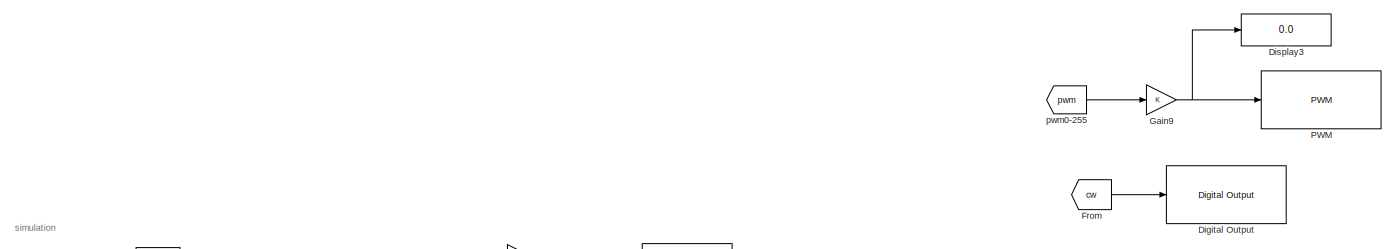
[diagram: root canvas - part 1/3, full width, top band]
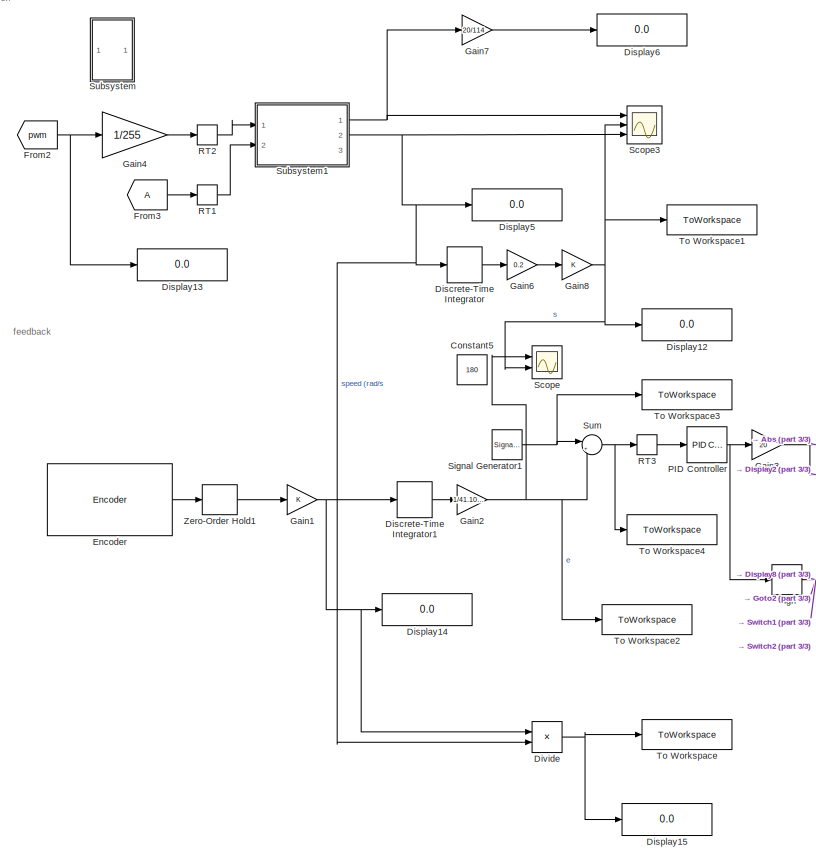
[diagram: root canvas - part 2/3, left side, full height]
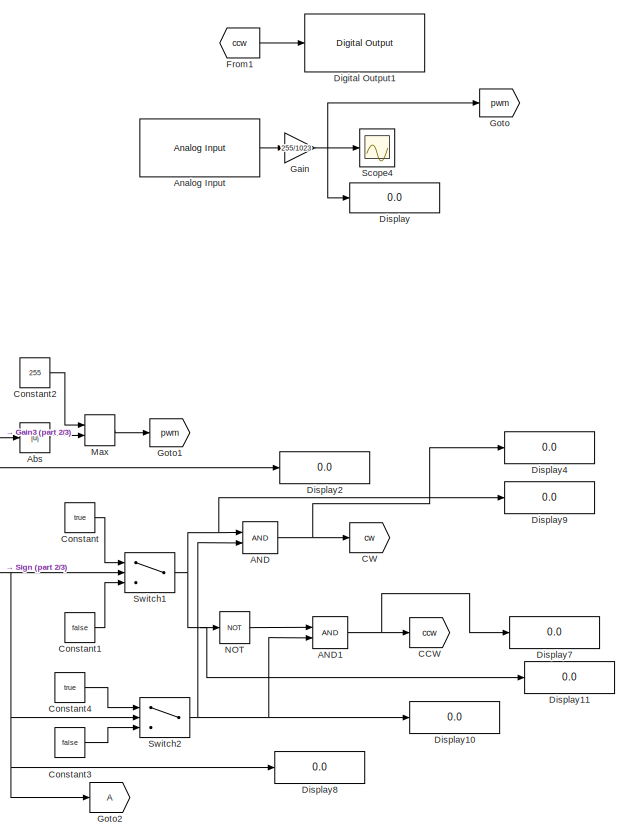
[diagram: root canvas - part 3/3, right side, full height]
MODEL slx_a287ce2c1caa
KIND model
CONFIG AbsTol = auto
CONFIG EnableMultiTasking = on
CONFIG FixedStep = .005
CONFIG InitFcn = pos = 0;\nvel = 0;
CONFIG MaxStep = auto
CONFIG MinStep = auto
CONFIG RelTol = 1e-3
CONFIG SampleTimeConstraint = Unconstrained
CONFIG SolverName = FixedStepAuto
CONFIG StartTime = 0.0
CONFIG StopTime = inf
WORKSPACE source: external: MATLAB File  (data not in archive)
BLOCK [Logic] AND
  AllPortsSameDT = off
  IconShape = distinctive
  OutDataTypeStr = boolean
  Ports = [2, 1]
BLOCK [Logic] AND1
  AllPortsSameDT = off
  IconShape = distinctive
  OutDataTypeStr = boolean
  Ports = [2, 1]
BLOCK [Abs] Abs
  SaturateOnIntegerOverflow = off
BLOCK [Reference] Analog Input  REF=arduinolib/Analog Input
  Ports = [0, 1]
  SourceBlock = arduinolib/Analog Input
  SourceProductBaseCode = ARDUINO
  SourceType = Arduino Analog Input
BLOCK [Goto] CCW
  GotoTag = ccw
BLOCK [Goto] CW
  GotoTag = cw
BLOCK [Constant] Constant
  Value = true
BLOCK [Constant] Constant1
  Value = false
BLOCK [Constant] Constant2
  Value = 255
BLOCK [Constant] Constant3
  Value = false
BLOCK [Constant] Constant4
  Value = true
BLOCK [Constant] Constant5
  Value = 180
BLOCK [Reference] Digital Output  REF=arduinolib/Digital Output
  Ports = [1]
  SourceBlock = arduinolib/Digital Output
  SourceProductBaseCode = ARDUINO
  SourceType = Arduino Digital Output
BLOCK [Reference] Digital Output1  REF=arduinolib/Digital Output
  Ports = [1]
  SourceBlock = arduinolib/Digital Output
  SourceProductBaseCode = ARDUINO
  SourceType = Arduino Digital Output
BLOCK [DiscreteIntegrator] Discrete-Time Integrator
  ICPrevOutput = DiscIntNeverNeededParam
  ICPrevScaledInput = DiscIntNeverNeededParam
  InitialConditionSetting = Auto
  Ports = [1, 1]
  SampleTime = -1
BLOCK [DiscreteIntegrator] Discrete-Time Integrator1
  ICPrevOutput = DiscIntNeverNeededParam
  ICPrevScaledInput = DiscIntNeverNeededParam
  InitialConditionSetting = Auto
  Ports = [1, 1]
  SampleTime = -1
BLOCK [Display] Display
  Decimation = 1
  Ports = [1]
BLOCK [Display] Display10
  Decimation = 1
  Ports = [1]
BLOCK [Display] Display11
  Decimation = 1
  Ports = [1]
BLOCK [Display] Display12
  Decimation = 1
  Ports = [1]
BLOCK [Display] Display13
  Decimation = 1
  Ports = [1]
BLOCK [Display] Display14
  Decimation = 1
  Ports = [1]
BLOCK [Display] Display15
  Decimation = 1
  Ports = [1]
BLOCK [Display] Display2
  Decimation = 1
  Ports = [1]
BLOCK [Display] Display3
  Decimation = 1
  Ports = [1]
BLOCK [Display] Display4
  Decimation = 1
  Ports = [1]
BLOCK [Display] Display5
  Decimation = 1
  Ports = [1]
BLOCK [Display] Display6
  Decimation = 1
  Ports = [1]
BLOCK [Display] Display7
  Decimation = 1
  Ports = [1]
BLOCK [Display] Display8
  Decimation = 1
  Ports = [1]
BLOCK [Display] Display9
  Decimation = 1
  Ports = [1]
BLOCK [Product] Divide
  Inputs = */
  Ports = [2, 1]
BLOCK [Reference] Encoder  REF=arduinosensorlib/Encoder
  Ports = [0, 1]
  SourceBlock = arduinosensorlib/Encoder
  SourceProductBaseCode = ARDUINO
  SourceType = Arduino Rotary Encoder
BLOCK [From] From
  GotoTag = cw
BLOCK [From] From1
  GotoTag = ccw
BLOCK [From] From2
  GotoTag = pwm
BLOCK [From] From3
BLOCK [Gain] Gain
  Gain = 255/1023
  OutDataTypeStr = uint8
  RndMeth = Nearest
BLOCK [Gain] Gain1
  OutDataTypeStr = int32
BLOCK [Gain] Gain2
  Gain = 1/41.1039/2.7
BLOCK [Gain] Gain3
  Gain = 20
BLOCK [Gain] Gain4
  Gain = 1/255
  OutDataTypeStr = double
BLOCK [Gain] Gain6
  Gain = 0.2
BLOCK [Gain] Gain7
  Gain = 20/114
BLOCK [Gain] Gain8
BLOCK [Gain] Gain9
  OutDataTypeStr = uint8
  RndMeth = Nearest
BLOCK [Goto] Goto
  Commented = on
  GotoTag = pwm
BLOCK [Goto] Goto1
  GotoTag = pwm
BLOCK [Goto] Goto2
BLOCK [MinMax] Max
  Inputs = 2
  Ports = [2, 1]
BLOCK [Logic] NOT
  AllPortsSameDT = off
  IconShape = distinctive
  Operator = NOT
  OutDataTypeStr = boolean
  Ports = [1, 1]
BLOCK [Reference] PID Controller  REF=slpidlib/PID Controller
  Ports = [1, 1]
  SourceBlock = slpidlib/PID Controller
  SourceProductBaseCode = SL
  SourceType = PID 1dof
BLOCK [Reference] PWM  REF=arduinolib/PWM
  Ports = [1]
  SourceBlock = arduinolib/PWM
  SourceProductBaseCode = ARDUINO
  SourceType = Arduino PWM
BLOCK [RateTransition] RT1
  OutPortSampleTime = Ts
BLOCK [RateTransition] RT2
  OutPortSampleTime = 5e-3
BLOCK [RateTransition] RT3
  OutPortSampleTime = Ts
BLOCK [Scope] Scope
  Floating = off
  NumInputPorts = 2
  Ports = [2]
  ScopeSpecificationString = Simulink.scopes.TimeScopeBlockCfg('CurrentConfiguration', extmgr.ConfigurationSet(extmgr.Configuration('Core','General UI',true),extmgr.Configuration('Core','Source UI',true),extmgr.Configuration('Sources','WiredSimulink',true,'DataLoggingVariableName','ScopeData1'),extmgr.Configuration('Visuals','Time Domain',true,'SerializedDisplays',{struct('MinYLimReal','-6.85347','MaxYLimReal','4.85965','YLab...<+1465ch>
BLOCK [Scope] Scope3
  Floating = off
  NumInputPorts = 3
  Ports = [3]
  ScopeSpecificationString = Simulink.scopes.TimeScopeBlockCfg('CurrentConfiguration', extmgr.ConfigurationSet(extmgr.Configuration('Core','General UI',true),extmgr.Configuration('Core','Source UI',true),extmgr.Configuration('Sources','WiredSimulink',true,'DataLoggingVariableName','ScopeData2'),extmgr.Configuration('Visuals','Time Domain',true,'SerializedDisplays',{struct('MinYLimReal','-18.44941','MaxYLimReal','-11.40812','Y...<+1818ch>
BLOCK [Scope] Scope4
  Floating = off
  NumInputPorts = 1
  Ports = [1]
  ScopeSpecificationString = Simulink.scopes.TimeScopeBlockCfg('CurrentConfiguration', extmgr.ConfigurationSet(extmgr.Configuration('Core','General UI',true),extmgr.Configuration('Core','Source UI',true),extmgr.Configuration('Sources','WiredSimulink',true,'DataLoggingVariableName','ScopeData1'),extmgr.Configuration('Visuals','Time Domain',true,'SerializedDisplays',{struct('MinYLimReal','41.25','MaxYLimReal','278.75','YLabelRe...<+1422ch>
BLOCK [Signum] Sign
BLOCK [SignalGenerator] Signal Generator1
  Amplitude = pi/2
  Frequency = .1
  Ports = [0, 1]
  WaveForm = square
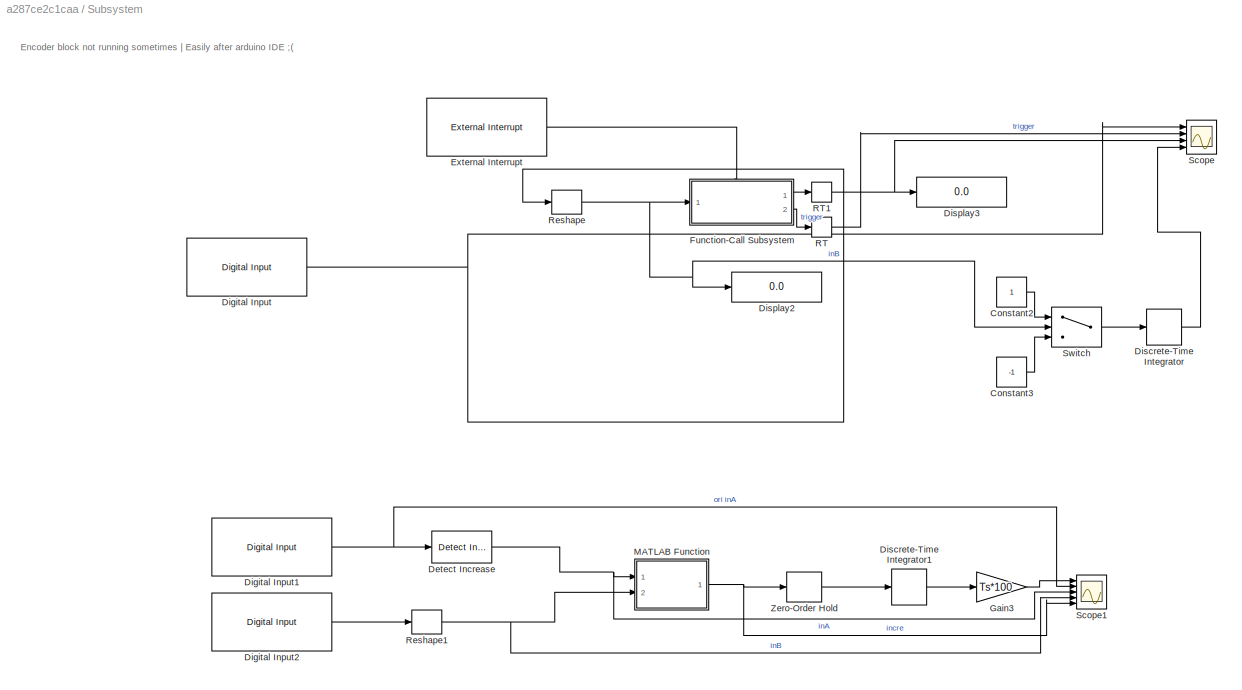
BLOCK [SubSystem] Subsystem
  Ports = []
  RequestExecContextInheritance = off
BLOCK [Constant] Subsystem/Constant2
  Commented = on
BLOCK [Constant] Subsystem/Constant3
  Commented = on
  Value = -1
BLOCK [Reference] Subsystem/Detect Increase  REF=simulink/Logic and Bit
Operations/Detect
Increase
  Commented = on
  Ports = [1, 1]
  SourceBlock = simulink/Logic and Bit\nOperations/Detect\nIncrease
  SourceProductBaseCode = SL
  SourceType = Detect Increase
BLOCK [Reference] Subsystem/Digital Input  REF=arduinolib/Digital Input
  Commented = on
  Ports = [0, 1]
  SourceBlock = arduinolib/Digital Input
  SourceProductBaseCode = ARDUINO
  SourceType = Arduino Digital Input
BLOCK [Reference] Subsystem/Digital Input1  REF=arduinolib/Digital Input
  Commented = on
  Ports = [0, 1]
  SourceBlock = arduinolib/Digital Input
  SourceProductBaseCode = ARDUINO
  SourceType = Arduino Digital Input
BLOCK [Reference] Subsystem/Digital Input2  REF=arduinolib/Digital Input
  Commented = on
  Ports = [0, 1]
  SourceBlock = arduinolib/Digital Input
  SourceProductBaseCode = ARDUINO
  SourceType = Arduino Digital Input
BLOCK [DiscreteIntegrator] Subsystem/Discrete-Time Integrator
  Commented = on
  ICPrevOutput = DiscIntNeverNeededParam
  ICPrevScaledInput = DiscIntNeverNeededParam
  InitialConditionSetting = Auto
  Ports = [1, 1]
  SampleTime = Ts
  gainval = 100
BLOCK [DiscreteIntegrator] Subsystem/Discrete-Time Integrator1
  Commented = on
  ICPrevOutput = DiscIntNeverNeededParam
  ICPrevScaledInput = DiscIntNeverNeededParam
  InitialConditionSetting = Auto
  Ports = [1, 1]
  SampleTime = -1
BLOCK [Display] Subsystem/Display2
  Commented = on
  Decimation = 1
  Ports = [1]
BLOCK [Display] Subsystem/Display3
  Commented = on
  Decimation = 1
  Ports = [1]
BLOCK [Reference] Subsystem/External Interrupt  REF=arduinolib/External Interrupt
  Commented = on
  Ports = [0, 1]
  SourceBlock = arduinolib/External Interrupt
  SourceProductBaseCode = ARDUINO
  SourceType = Arduino Interrupt Block
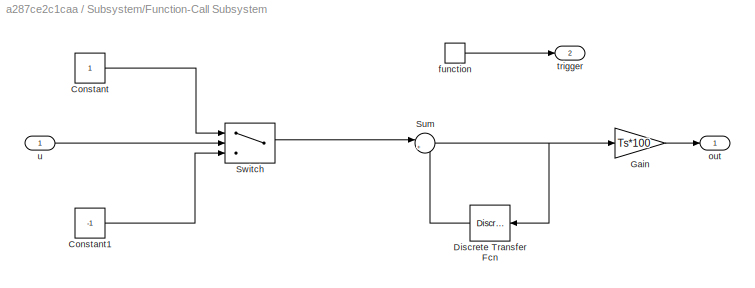
BLOCK [SubSystem] Subsystem/Function-Call Subsystem
  Commented = on
  InitFcn = pos = 0;\nvel = 0;
  Ports = [1, 2, 0, 1]
  RequestExecContextInheritance = off
  TreatAsAtomicUnit = on
BLOCK [Constant] Subsystem/Function-Call Subsystem/Constant
BLOCK [Constant] Subsystem/Function-Call Subsystem/Constant1
  Value = -1
BLOCK [DiscreteTransferFcn] Subsystem/Function-Call Subsystem/Discrete Transfer Fcn
  Denominator = [1 0]
  InputPortMap = u0
  NameLocation = top
  Ports = [1, 1]
BLOCK [Gain] Subsystem/Function-Call Subsystem/Gain
  Gain = Ts*100
BLOCK [Sum] Subsystem/Function-Call Subsystem/Sum
  Inputs = |++
  Ports = [2, 1]
BLOCK [Switch] Subsystem/Function-Call Subsystem/Switch
  Criteria = u2 > Threshold
  InputSameDT = off
  SaturateOnIntegerOverflow = off
BLOCK [TriggerPort] Subsystem/Function-Call Subsystem/function
  Ports = [0, 1]
  ShowOutputPort = on
  StatesWhenEnabling = held
  TriggerType = function-call
  VariantControl = (inherit)
BLOCK [Outport] Subsystem/Function-Call Subsystem/out
BLOCK [Outport] Subsystem/Function-Call Subsystem/trigger
  Port = 2
BLOCK [Inport] Subsystem/Function-Call Subsystem/u
BLOCK [Gain] Subsystem/Gain3
  Commented = on
  Gain = Ts*100
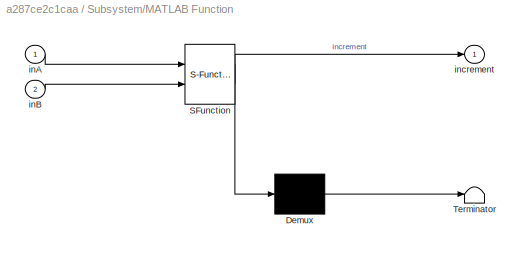
BLOCK [SubSystem] Subsystem/MATLAB Function
  Commented = on
  ErrorFcn = Stateflow.Translate.translate
  PermitHierarchicalResolution = ExplicitOnly
  Ports = [2, 1]
  RequestExecContextInheritance = off
  SFBlockType = MATLAB Function
  TreatAsAtomicUnit = on
BLOCK [Demux] Subsystem/MATLAB Function/ Demux 
  Outputs = 1
  Ports = [1, 1]
BLOCK [S-Function] Subsystem/MATLAB Function/ SFunction 
  EnableBusSupport = on
  FunctionName = sf_sfun
  PortCounts = [2 2]
  Ports = [2, 2]
  SFcnIsStateOwnerBlock = off
  SFunctionDeploymentMode = off
  Tag = Stateflow S-Function 2
BLOCK [Terminator] Subsystem/MATLAB Function/ Terminator 
BLOCK [Inport] Subsystem/MATLAB Function/inA
BLOCK [Inport] Subsystem/MATLAB Function/inB
  Port = 2
BLOCK [Outport] Subsystem/MATLAB Function/increment
BLOCK [RateTransition] Subsystem/RT
  Commented = on
  Deterministic = off
BLOCK [RateTransition] Subsystem/RT1
  Commented = on
  Deterministic = off
BLOCK [Reshape] Subsystem/Reshape
  Commented = on
  Ports = [1, 1]
BLOCK [Reshape] Subsystem/Reshape1
  Commented = on
  Ports = [1, 1]
BLOCK [Scope] Subsystem/Scope
  Commented = on
  Floating = off
  NumInputPorts = 4
  Ports = [4]
  ScopeSpecificationString = Simulink.scopes.TimeScopeBlockCfg('CurrentConfiguration', extmgr.ConfigurationSet(extmgr.Configuration('Core','General UI',true),extmgr.Configuration('Core','Source UI',true),extmgr.Configuration('Sources','WiredSimulink',true,'DataLoggingVariableName','ScopeData1'),extmgr.Configuration('Visuals','Time Domain',true,'SerializedDisplays',{struct('MinYLimReal','-4.76878','MaxYLimReal','6.49732','YLab...<+1578ch>
BLOCK [Scope] Subsystem/Scope1
  Commented = on
  Floating = off
  NumInputPorts = 5
  Ports = [5]
  ScopeSpecificationString = Simulink.scopes.TimeScopeBlockCfg('CurrentConfiguration', extmgr.ConfigurationSet(extmgr.Configuration('Core','General UI',true),extmgr.Configuration('Core','Source UI',true),extmgr.Configuration('Sources','WiredSimulink',true,'DataLoggingVariableName','ScopeData1'),extmgr.Configuration('Visuals','Time Domain',true,'SerializedDisplays',{struct('MinYLimReal','-1.29375','MaxYLimReal','1.64375','YLab...<+1608ch>
BLOCK [Switch] Subsystem/Switch
  Commented = on
  Criteria = u2 > Threshold
  InputSameDT = off
  SaturateOnIntegerOverflow = off
BLOCK [ZeroOrderHold] Subsystem/Zero-Order Hold
  Commented = on
  SampleTime = -1
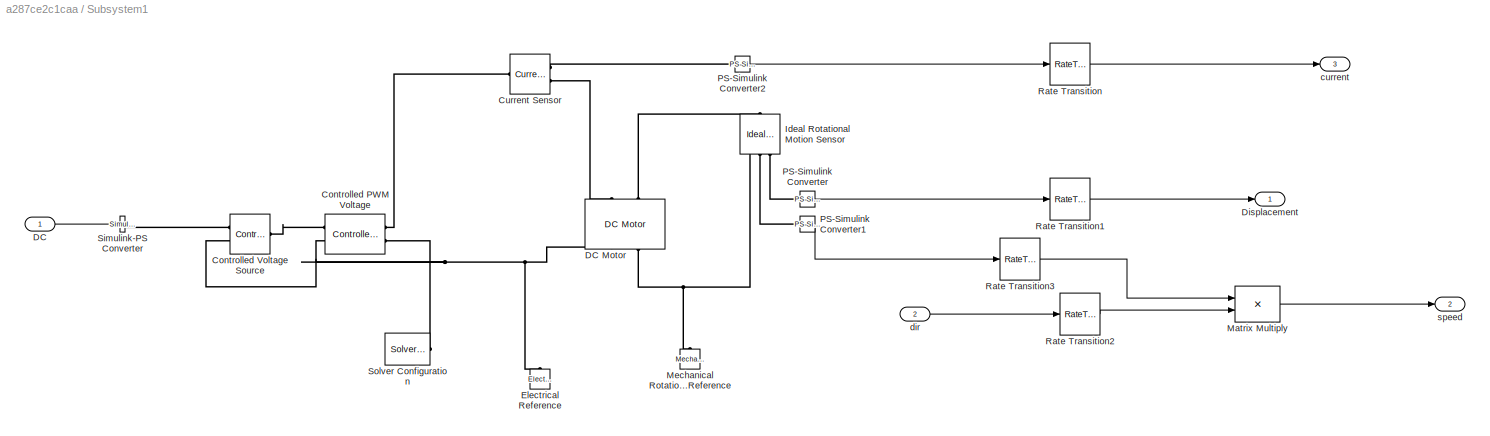
BLOCK [SubSystem] Subsystem1
  Ports = [2, 3]
  RequestExecContextInheritance = off
BLOCK [Reference] Subsystem1/Controlled PWM Voltage  REF=ee_lib/Integrated Circuits/Controlled PWM
Voltage
  Ports = [0, 0, 0, 0, 0, 2, 2]
  SourceBlock = ee_lib/Integrated Circuits/Controlled PWM\nVoltage
  SourceProductBaseCode = PS
  SourceType = Controlled PWM\nVoltage
BLOCK [Reference] Subsystem1/Controlled Voltage Source  REF=fl_lib/Electrical/Electrical Sources/Controlled Voltage
Source
  Ports = [0, 0, 0, 0, 0, 1, 2]
  SourceBlock = fl_lib/Electrical/Electrical Sources/Controlled Voltage\nSource
  SourceProductBaseCode = SS
  SourceType = Controlled Voltage\nSource
BLOCK [Reference] Subsystem1/Current Sensor  REF=fl_lib/Electrical/Electrical Sensors/Current Sensor
  Ports = [0, 0, 0, 0, 0, 1, 2]
  SourceBlock = fl_lib/Electrical/Electrical Sensors/Current Sensor
  SourceProductBaseCode = SS
  SourceType = Current Sensor
BLOCK [Inport] Subsystem1/DC
BLOCK [Reference] Subsystem1/DC Motor  REF=ee_lib/Electromechanical/Brushed Motors/DC Motor
  NameLocation = right
  Ports = [0, 0, 0, 0, 0, 2, 2]
  SourceBlock = ee_lib/Electromechanical/Brushed Motors/DC Motor
  SourceProductBaseCode = PS
  SourceType = DC Motor
BLOCK [Outport] Subsystem1/Displacement
  NameLocation = top
BLOCK [Reference] Subsystem1/Electrical Reference  REF=fl_lib/Electrical/Electrical Elements/Electrical Reference
  NameLocation = right
  Ports = [0, 0, 0, 0, 0, 1]
  SourceBlock = fl_lib/Electrical/Electrical Elements/Electrical Reference
  SourceProductBaseCode = SS
  SourceType = Electrical Reference
BLOCK [Reference] Subsystem1/Ideal Rotational Motion Sensor  REF=fl_lib/Mechanical/Mechanical Sensors/Ideal Rotational
Motion Sensor
  NameLocation = left
  Ports = [0, 0, 0, 0, 0, 1, 3]
  SourceBlock = fl_lib/Mechanical/Mechanical Sensors/Ideal Rotational\nMotion Sensor
  SourceProductBaseCode = SS
  SourceType = Ideal Rotational\nMotion Sensor
BLOCK [Product] Subsystem1/Matrix Multiply
  Multiplication = Matrix(*)
  Ports = [2, 1]
BLOCK [Reference] Subsystem1/Mechanical Rotational Reference  REF=fl_lib/Mechanical/Rotational Elements/Mechanical
Rotational Reference
  NameLocation = right
  Ports = [0, 0, 0, 0, 0, 1]
  SourceBlock = fl_lib/Mechanical/Rotational Elements/Mechanical\nRotational Reference
  SourceProductBaseCode = SS
  SourceType = Mechanical\nRotational Reference
BLOCK [Reference] Subsystem1/PS-Simulink Converter  REF=nesl_utility/PS-Simulink
Converter
  Ports = [0, 1, 0, 0, 0, 1]
  SourceBlock = nesl_utility/PS-Simulink\nConverter
  SourceProductBaseCode = PW,SS
  SourceType = PS-Simulink\nConverter
BLOCK [Reference] Subsystem1/PS-Simulink Converter1  REF=nesl_utility/PS-Simulink
Converter
  Ports = [0, 1, 0, 0, 0, 1]
  SourceBlock = nesl_utility/PS-Simulink\nConverter
  SourceProductBaseCode = PW,SS
  SourceType = PS-Simulink\nConverter
BLOCK [Reference] Subsystem1/PS-Simulink Converter2  REF=nesl_utility/PS-Simulink
Converter
  Ports = [0, 1, 0, 0, 0, 1]
  SourceBlock = nesl_utility/PS-Simulink\nConverter
  SourceProductBaseCode = PW,SS
  SourceType = PS-Simulink\nConverter
BLOCK [RateTransition] Subsystem1/Rate Transition
  OutPortSampleTime = Ts
BLOCK [RateTransition] Subsystem1/Rate Transition1
  OutPortSampleTime = Ts
BLOCK [RateTransition] Subsystem1/Rate Transition2
  OutPortSampleTime = Ts
BLOCK [RateTransition] Subsystem1/Rate Transition3
  OutPortSampleTime = Ts
BLOCK [Reference] Subsystem1/Simulink-PS Converter  REF=nesl_utility/Simulink-PS
Converter
  Ports = [1, 0, 0, 0, 0, 0, 1]
  SourceBlock = nesl_utility/Simulink-PS\nConverter
  SourceProductBaseCode = PW,SS
  SourceType = Simulink-PS\nConverter
BLOCK [Reference] Subsystem1/Solver Configuration  REF=nesl_utility/Solver
Configuration
  Ports = [0, 0, 0, 0, 0, 0, 1]
  SourceBlock = nesl_utility/Solver\nConfiguration
  SourceProductBaseCode = PW,SS
  SourceType = Solver\nConfiguration
BLOCK [Outport] Subsystem1/current
  Port = 3
BLOCK [Inport] Subsystem1/dir
  Port = 2
BLOCK [Outport] Subsystem1/speed
  Port = 2
BLOCK [Sum] Sum
  Inputs = |+-
  Ports = [2, 1]
BLOCK [Switch] Switch1
  Criteria = u2 > Threshold
  InputSameDT = off
  SaturateOnIntegerOverflow = off
BLOCK [Switch] Switch2
  Criteria = u2 ~= 0
  InputSameDT = off
  SaturateOnIntegerOverflow = off
BLOCK [ToWorkspace] To Workspace
  FixptAsFi = on
  MaxDataPoints = inf
  Ports = [1]
  SampleTime = -1
  SaveFormat = Timeseries
  VariableName = timeVar
BLOCK [ToWorkspace] To Workspace1
  FixptAsFi = on
  MaxDataPoints = inf
  Ports = [1]
  SampleTime = -1
  SaveFormat = Timeseries
  VariableName = sOut
BLOCK [ToWorkspace] To Workspace2
  FixptAsFi = on
  MaxDataPoints = inf
  Ports = [1]
  SampleTime = -1
  SaveFormat = Timeseries
  VariableName = eOut
BLOCK [ToWorkspace] To Workspace3
  FixptAsFi = on
  MaxDataPoints = inf
  Ports = [1]
  SampleTime = Ts
  SaveFormat = Timeseries
  VariableName = dOut
BLOCK [ToWorkspace] To Workspace4
  FixptAsFi = on
  MaxDataPoints = inf
  Ports = [1]
  SampleTime = Ts
  SaveFormat = Timeseries
  VariableName = error
BLOCK [ZeroOrderHold] Zero-Order Hold1
  NameLocation = top
  SampleTime = Ts
BLOCK [From] pwm0-255
  GotoTag = pwm
ANNOTATION (root): feedback
ANNOTATION (root): simulation
ANNOTATION Subsystem: Encoder block not running sometimes | Easily after arduino IDE ;(
NET AND1:1 -> CCW:1, Display7:1
NET AND:1 -> CW:1, Display4:1
LINE Abs:1 -> Max:2
LINE Analog Input:1 -> Gain:1
LINE Constant1:1 -> Switch1:3
LINE Constant2:1 -> Max:1
LINE Constant3:1 -> Switch2:3
LINE Constant4:1 -> Switch2:1
LINE Constant:1 -> Switch1:1
LINE Discrete-Time Integrator1:1 -> Gain2:1
LINE Discrete-Time Integrator:1 -> Gain6:1
NET Divide:1 -> Display15:1, To Workspace:1
LINE Encoder:1 -> Zero-Order Hold1:1
LINE From1:1 -> Digital Output1:1
NET From2:1 -> Display13:1, Gain4:1
LINE From3:1 -> RT1:1
LINE From:1 -> Digital Output:1
NET Gain1:1 -> Discrete-Time Integrator1:1, Display14:1, Divide:1
NET Gain2:1 -> Scope:1, Sum:2, To Workspace2:1
NET Gain3:1 -> Abs:1, Display2:1
LINE Gain4:1 -> RT2:1
LINE Gain6:1 -> Gain8:1
LINE Gain7:1 -> Display6:1
NET Gain8:1 -> Display12:1, Scope3:2, Scope:2, To Workspace1:1
NET Gain9:1 -> Display3:1, PWM:1
NET Gain:1 -> Display:1, Goto:1, Scope4:1
LINE Max:1 -> Goto1:1
LINE NOT:1 -> AND1:1
NET PID Controller:1 -> Gain3:1, Sign:1
LINE RT1:1 -> Subsystem1:2
LINE RT2:1 -> Subsystem1:1
LINE RT3:1 -> PID Controller:1
NET Sign:1 -> Display8:1, Goto2:1, Switch1:2, Switch2:2
NET Signal Generator1:1 -> Sum:1, To Workspace3:1
LINE Subsystem/Constant2:1 -> Subsystem/Switch:1
LINE Subsystem/Constant3:1 -> Subsystem/Switch:3
NET Subsystem/Detect Increase:1 -> Subsystem/MATLAB Function:1, Subsystem/Scope1:3
NET Subsystem/Digital Input1:1 -> Subsystem/Detect Increase:1, Subsystem/Scope1:2
LINE Subsystem/Digital Input2:1 -> Subsystem/Reshape1:1
NET Subsystem/Digital Input:1 -> Subsystem/Reshape:1, Subsystem/Scope:1
LINE Subsystem/Discrete-Time Integrator1:1 -> Subsystem/Gain3:1
LINE Subsystem/Discrete-Time Integrator:1 -> Subsystem/Scope:4
LINE Subsystem/External Interrupt:1 -> Subsystem/Function-Call Subsystem:trigger
LINE Subsystem/Function-Call Subsystem/Constant1:1 -> Subsystem/Function-Call Subsystem/Switch:3
LINE Subsystem/Function-Call Subsystem/Constant:1 -> Subsystem/Function-Call Subsystem/Switch:1
LINE Subsystem/Function-Call Subsystem/Discrete Transfer Fcn:1 -> Subsystem/Function-Call Subsystem/Sum:2
LINE Subsystem/Function-Call Subsystem/Gain:1 -> Subsystem/Function-Call Subsystem/out:1
NET Subsystem/Function-Call Subsystem/Sum:1 -> Subsystem/Function-Call Subsystem/Discrete Transfer Fcn:1, Subsystem/Function-Call Subsystem/Gain:1
LINE Subsystem/Function-Call Subsystem/Switch:1 -> Subsystem/Function-Call Subsystem/Sum:1
LINE Subsystem/Function-Call Subsystem/function:1 -> Subsystem/Function-Call Subsystem/trigger:1
LINE Subsystem/Function-Call Subsystem/u:1 -> Subsystem/Function-Call Subsystem/Switch:2
LINE Subsystem/Function-Call Subsystem:1 -> Subsystem/RT1:1
LINE Subsystem/Function-Call Subsystem:2 -> Subsystem/RT:1
LINE Subsystem/Gain3:1 -> Subsystem/Scope1:1
NET Subsystem/MATLAB Function:1 -> Subsystem/Scope1:5, Subsystem/Zero-Order Hold:1
NET Subsystem/RT1:1 -> Subsystem/Display3:1, Subsystem/Scope:3
LINE Subsystem/RT:1 -> Subsystem/Scope:2
NET Subsystem/Reshape1:1 -> Subsystem/MATLAB Function:2, Subsystem/Scope1:4
NET Subsystem/Reshape:1 -> Subsystem/Display2:1, Subsystem/Function-Call Subsystem:1, Subsystem/Switch:2
LINE Subsystem/Switch:1 -> Subsystem/Discrete-Time Integrator:1
LINE Subsystem/Zero-Order Hold:1 -> Subsystem/Discrete-Time Integrator1:1
LINE Subsystem1/DC:1 -> Subsystem1/Simulink-PS Converter:1
LINE Subsystem1/Matrix Multiply:1 -> Subsystem1/speed:1
LINE Subsystem1/PS-Simulink Converter1:1 -> Subsystem1/Rate Transition3:1
LINE Subsystem1/PS-Simulink Converter2:1 -> Subsystem1/Rate Transition:1
LINE Subsystem1/PS-Simulink Converter:1 -> Subsystem1/Rate Transition1:1
LINE Subsystem1/Rate Transition1:1 -> Subsystem1/Displacement:1
LINE Subsystem1/Rate Transition2:1 -> Subsystem1/Matrix Multiply:2
LINE Subsystem1/Rate Transition3:1 -> Subsystem1/Matrix Multiply:1
LINE Subsystem1/Rate Transition:1 -> Subsystem1/current:1
LINE Subsystem1/dir:1 -> Subsystem1/Rate Transition2:1
NET Subsystem1:1 -> Gain7:1, Scope3:1
NET Subsystem1:2 -> Discrete-Time Integrator:1, Display5:1, Divide:2, Scope3:3
NET Sum:1 -> RT3:1, To Workspace4:1
NET Switch1:1 -> AND:1, Display11:1, Display9:1, NOT:1
NET Switch2:1 -> AND1:2, AND:2, Display10:1
LINE Zero-Order Hold1:1 -> Gain1:1
LINE pwm0-255:1 -> Gain9:1
PLINE Subsystem1/Controlled PWM Voltage:LConn1 -- Subsystem1/Controlled Voltage Source:LConn1
PNET net1: Subsystem1/Controlled PWM Voltage:LConn2 -- Subsystem1/Controlled PWM Voltage:RConn2 -- Subsystem1/Controlled Voltage Source:RConn2 -- Subsystem1/DC Motor:RConn1 -- Subsystem1/Electrical Reference:LConn1 -- Subsystem1/Solver Configuration:RConn1
PLINE Subsystem1/Controlled PWM Voltage:RConn1 -- Subsystem1/Current Sensor:LConn1
PLINE Subsystem1/Controlled Voltage Source:RConn1 -- Subsystem1/Simulink-PS Converter:RConn1
PLINE Subsystem1/Current Sensor:RConn1 -- Subsystem1/PS-Simulink Converter2:LConn1
PLINE Subsystem1/Current Sensor:RConn2 -- Subsystem1/DC Motor:LConn1
PLINE Subsystem1/DC Motor:LConn2 -- Subsystem1/Ideal Rotational Motion Sensor:LConn1
PNET net2: Subsystem1/DC Motor:RConn2 -- Subsystem1/Ideal Rotational Motion Sensor:RConn1 -- Subsystem1/Mechanical Rotational Reference:LConn1
PLINE Subsystem1/Ideal Rotational Motion Sensor:RConn2 -- Subsystem1/PS-Simulink Converter1:LConn1
PLINE Subsystem1/Ideal Rotational Motion Sensor:RConn3 -- Subsystem1/PS-Simulink Converter:LConn1
note: NET lines group one-source signal fan-out (src -> all destinations, sorted); 1:1 wires keep LINE; PNET lines group multi-terminal physical nets as a canonical sorted terminal list (undirected conserving connections); 2-terminal nets keep the pairwise PLINE form
CHART Subsystem/MATLAB Function states=1 transitions=1
  STATE_LABEL 'eML_blk_kernel()'
  STATE_LABEL 'SCRIPT:\nfunction increment = fcn(inA,inB)\nif inA\n    if inB\n        increment = 1;\n    else\n        increment = -1;\n    end\nelse\n    increment = 0;\nend\nend'
CHART  states=0 transitions=0
